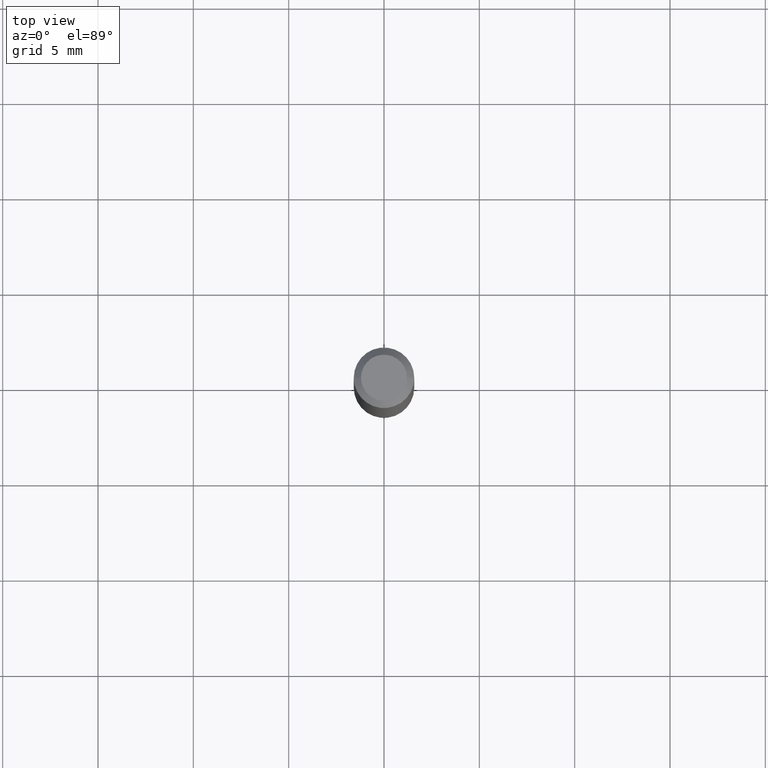
[diagram: clean part render]
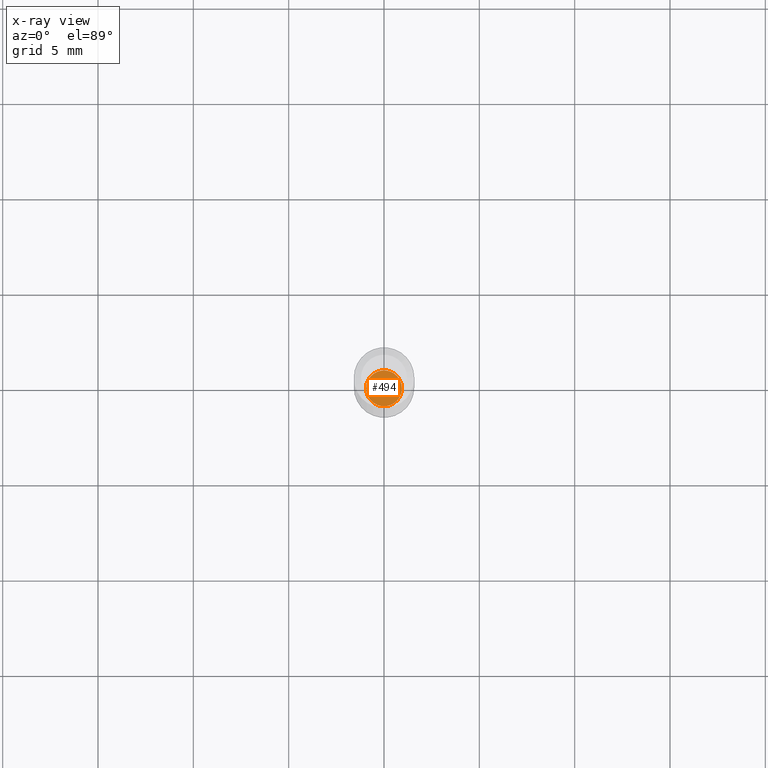
[diagram: x-ray — body ghosted, one internal face saturated and labeled with its STEP entity id]
A machine part, top view, then the same camera in x-ray: the body is ghosted and one INTERNAL B-rep face — a face not visible from any outside direction — is saturated and labeled: STEP entity #494.
In plain terms, the highlighted planar face has unit normal (-0, 0, 1).
Its self-contained STEP definition (entity closure, byte-faithful):
#1 = PLANE ( 'NONE',  #343 ) ;
#15 = ORIENTED_EDGE ( 'NONE', *, *, #266, .F. ) ;
#48 = FACE_OUTER_BOUND ( 'NONE', #184, .T. ) ;
#148 = DIRECTION ( 'NONE',  ( -2.438088387897960049E-29, 3.491481338843145188E-15, 1.000000000000000000 ) ) ;
#152 = DIRECTION ( 'NONE',  ( 1.000000000000000000, -6.982962677686265922E-15, 4.876176775795935793E-29 ) ) ;
#154 = DIRECTION ( 'NONE',  ( -2.445468806185136597E-29, 3.491481338843145583E-15, 1.000000000000000000 ) ) ;
#176 = CARTESIAN_POINT ( 'NONE',  ( -0.03699999999999999817, -4.186088667619663091E-15, -1.275000000000000577 ) ) ;
#180 = CIRCLE ( 'NONE', #302, 0.03699999999999999817 ) ;
#184 = EDGE_LOOP ( 'NONE', ( #15, #221 ) ) ;
#201 = DIRECTION ( 'NONE',  ( 1.000000000000000000, -6.982962677686254089E-15, 0.000000000000000000 ) ) ;
#221 = ORIENTED_EDGE ( 'NONE', *, *, #373, .F. ) ;
#226 = CARTESIAN_POINT ( 'NONE',  ( 3.117972727886050170E-29, -4.451638707025012383E-15, -1.275000000000000577 ) ) ;
#266 = EDGE_CURVE ( 'NONE', #295, #454, #180, .T. ) ;
#269 = CIRCLE ( 'NONE', #466, 0.03699999999999999817 ) ;
#295 = VERTEX_POINT ( 'NONE', #500 ) ;
#302 = AXIS2_PLACEMENT_3D ( 'NONE', #461, #312, #201 ) ;
#312 = DIRECTION ( 'NONE',  ( -2.445468806185136597E-29, 3.491481338843145583E-15, 1.000000000000000000 ) ) ;
#343 = AXIS2_PLACEMENT_3D ( 'NONE', #464, #148, #152 ) ;
#373 = EDGE_CURVE ( 'NONE', #454, #295, #269, .T. ) ;
#423 = DIRECTION ( 'NONE',  ( 1.000000000000000000, -6.982962677686254089E-15, 0.000000000000000000 ) ) ;
#454 = VERTEX_POINT ( 'NONE', #176 ) ;
#461 = CARTESIAN_POINT ( 'NONE',  ( 3.117972727886050170E-29, -4.451638707025012383E-15, -1.275000000000000577 ) ) ;
#464 = CARTESIAN_POINT ( 'NONE',  ( 3.117972727886050170E-29, -4.451638707025012383E-15, -1.275000000000000577 ) ) ;
#466 = AXIS2_PLACEMENT_3D ( 'NONE', #226, #154, #423 ) ;
#494 = ADVANCED_FACE ( 'NONE', ( #48 ), #1, .F. ) ;
#500 = CARTESIAN_POINT ( 'NONE',  ( 0.03699999999999999817, -4.710008326099403589E-15, -1.275000000000000577 ) ) ;